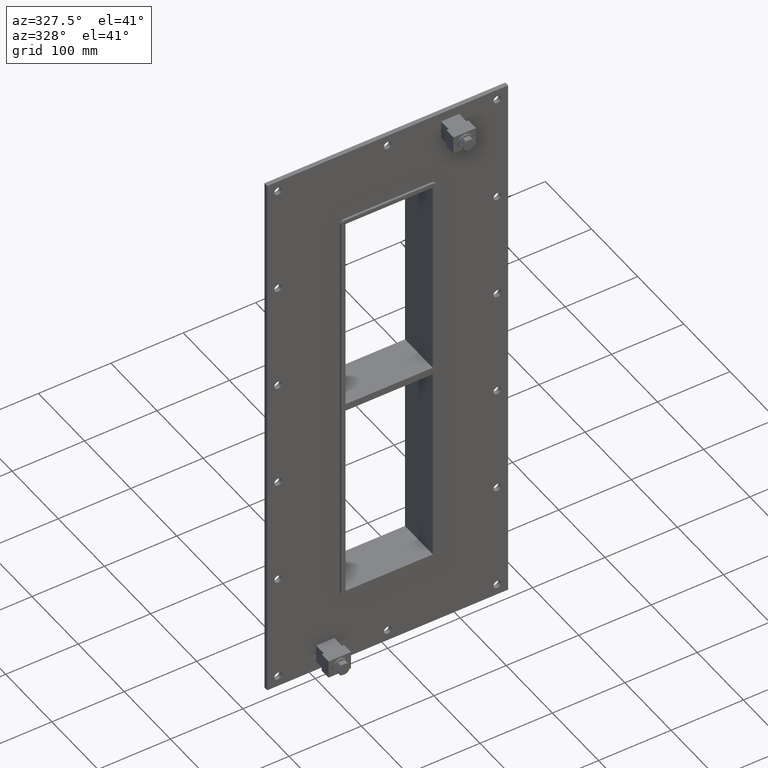
[diagram: clean part render]
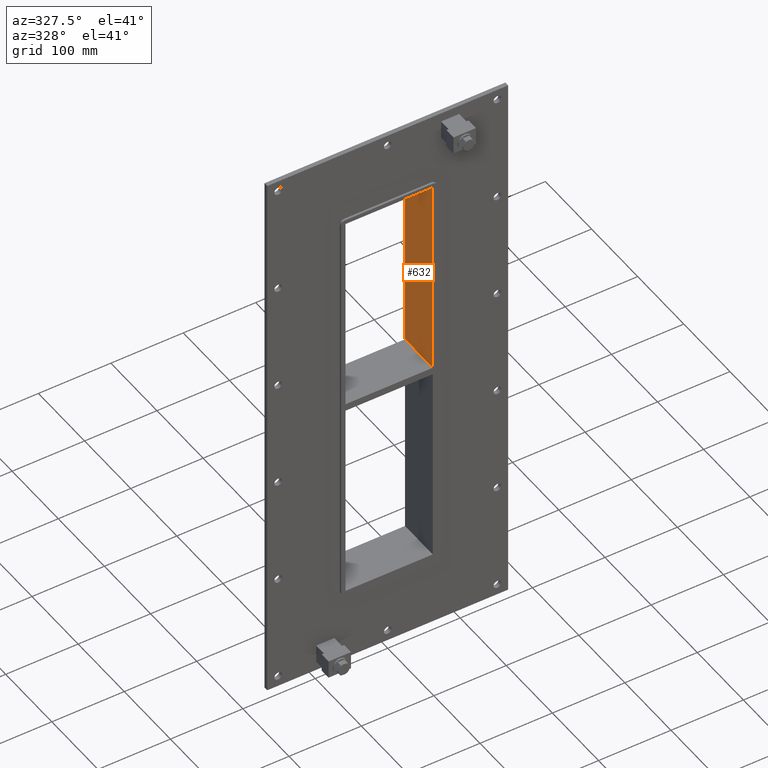
[diagram: same view with one face highlighted and labeled with its STEP entity id]
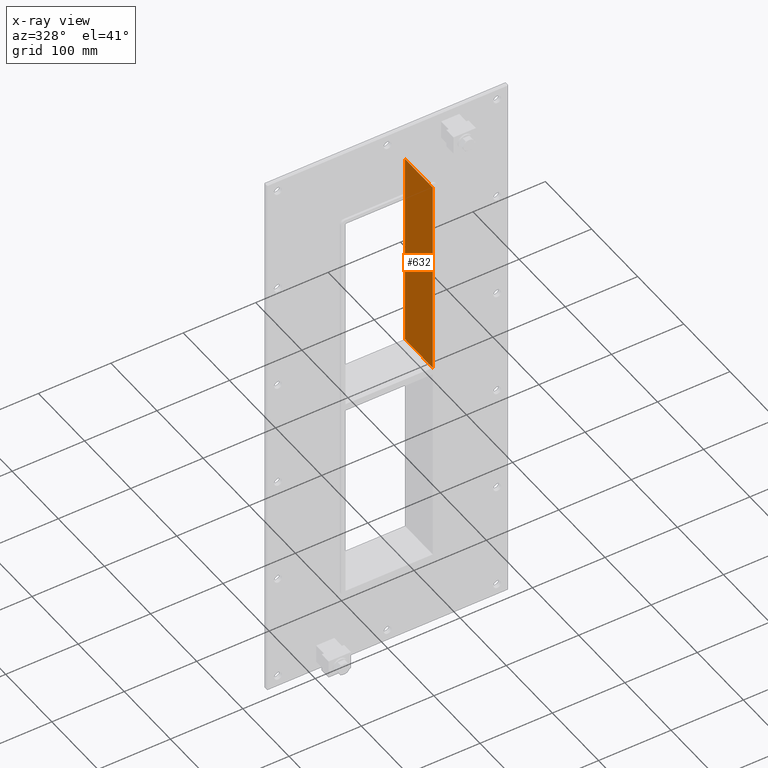
[diagram: x-ray of the same camera — body ghosted, the highlighted face saturated]
A machine part, auxiliary view. The second image highlights one B-rep face of the part: STEP entity #632.
The next image is the same camera in x-ray: the body ghosted, the highlighted face saturated — about 0% of this face is hidden behind the body in this view.
In plain terms, the highlighted planar face has unit normal (1, 0, 0).
Its self-contained STEP definition (entity closure, byte-faithful):
#507=CARTESIAN_POINT('',(60.249999999999211,-3.0,5.0));
#508=VERTEX_POINT('',#507);
#515=CARTESIAN_POINT('',(60.249999999999211,57.0,5.0));
#516=VERTEX_POINT('',#515);
#517=CARTESIAN_POINT('',(60.25,57.000000000000007,5.0));
#518=DIRECTION('',(0.0,-1.0,0.0));
#519=VECTOR('',#518,60.000000000000007);
#520=LINE('',#517,#519);
#521=EDGE_CURVE('',#516,#508,#520,.T.);
#602=CARTESIAN_POINT('',(60.25,0.0,283.0));
#603=DIRECTION('',(1.0,0.0,0.0));
#604=DIRECTION('',(0.0,0.0,-1.0));
#605=AXIS2_PLACEMENT_3D('',#602,#603,#604);
#606=PLANE('',#605);
#607=ORIENTED_EDGE('',*,*,#521,.T.);
#608=CARTESIAN_POINT('',(60.25,-3.0,283.0));
#609=VERTEX_POINT('',#608);
#610=CARTESIAN_POINT('',(60.25,-3.0,283.0));
#611=DIRECTION('',(0.0,0.0,-1.0));
#612=VECTOR('',#611,278.0);
#613=LINE('',#610,#612);
#614=EDGE_CURVE('',#609,#508,#613,.T.);
#615=ORIENTED_EDGE('',*,*,#614,.F.);
#616=CARTESIAN_POINT('',(60.25,57.0,283.0));
#617=VERTEX_POINT('',#616);
#618=CARTESIAN_POINT('',(60.25,-3.0,283.0));
#619=DIRECTION('',(0.0,1.0,0.0));
#620=VECTOR('',#619,60.0);
#621=LINE('',#618,#620);
#622=EDGE_CURVE('',#609,#617,#621,.T.);
#623=ORIENTED_EDGE('',*,*,#622,.T.);
#624=CARTESIAN_POINT('',(60.25,57.0,5.0));
#625=DIRECTION('',(0.0,0.0,1.0));
#626=VECTOR('',#625,278.0);
#627=LINE('',#624,#626);
#628=EDGE_CURVE('',#516,#617,#627,.T.);
#629=ORIENTED_EDGE('',*,*,#628,.F.);
#630=EDGE_LOOP('',(#607,#615,#623,#629));
#631=FACE_OUTER_BOUND('',#630,.T.);
#632=ADVANCED_FACE('',(#631),#606,.F.);